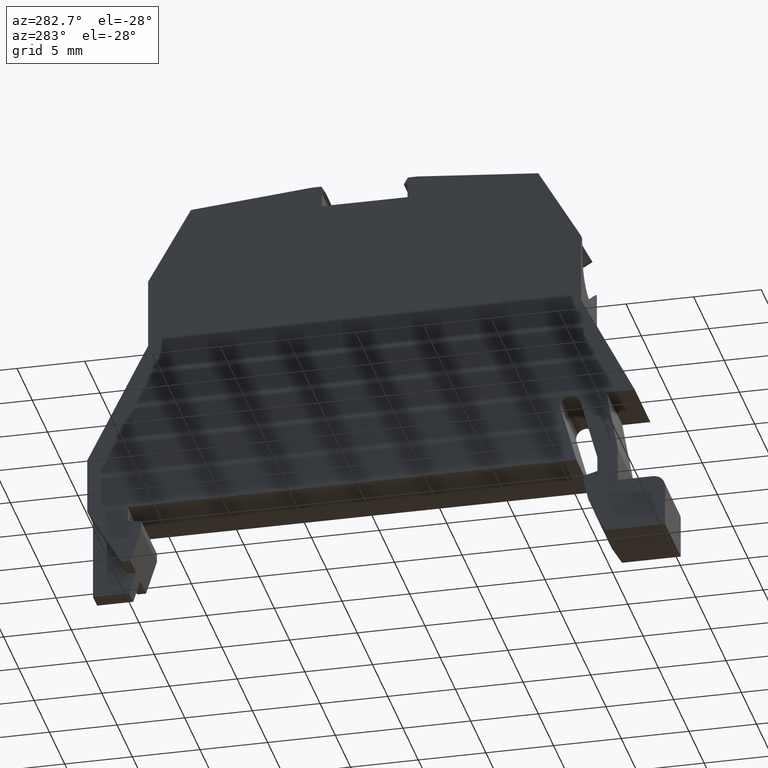
[diagram: clean part render]
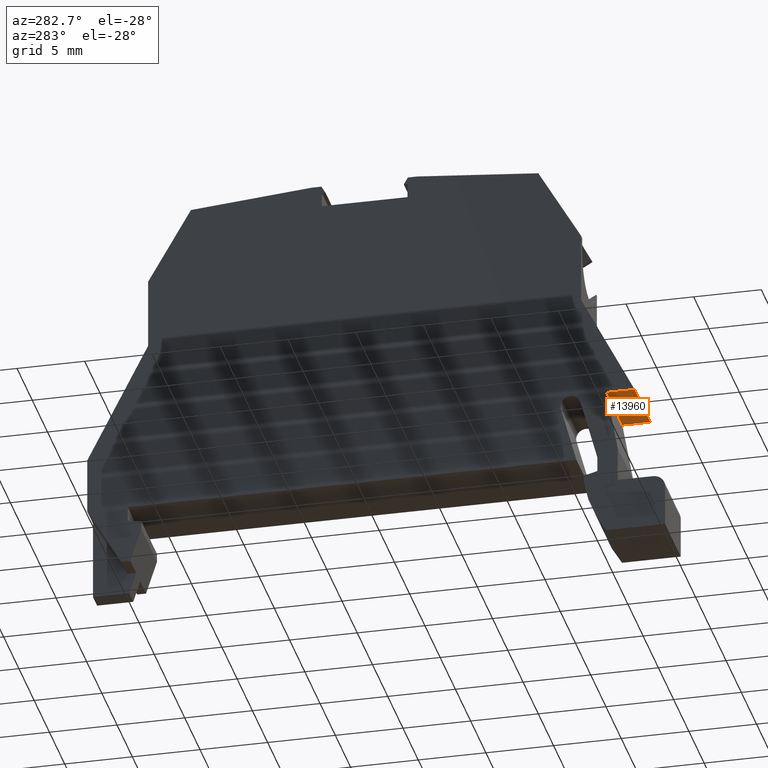
[diagram: same view with one face highlighted and labeled with its STEP entity id]
A machine part, auxiliary view. The second image highlights one B-rep face of the part: STEP entity #13960.
In plain terms, the highlighted planar face has unit normal (-0, -0, 1).
Its self-contained STEP definition (entity closure, byte-faithful):
#660=CARTESIAN_POINT('',(81.2869033162164,139.125126708464,
9.22500000000426));
#670=VERTEX_POINT('',#660);
#840=CARTESIAN_POINT('',(81.2869033162138,139.125126708464,
14.3750000000047));
#850=VERTEX_POINT('',#840);
#880=CARTESIAN_POINT('',(81.2869033162187,139.125126708464,
4.37500000000465));
#890=DIRECTION('',(4.93579527483088E-13,-1.70294172228178E-15,-1.));
#900=VECTOR('',#890,1.);
#910=LINE('',#880,#900);
#920=EDGE_CURVE('',#850,#670,#910,.T.);
#1640=CARTESIAN_POINT('',(81.2869033162158,141.196541457125,
9.22500000000424));
#1650=DIRECTION('',(2.54685161849011E-13,-1.,9.71445146589593E-15));
#1660=VECTOR('',#1650,1.);
#1670=LINE('',#1640,#1660);
#1680=CARTESIAN_POINT('',(81.2869033162158,141.196541457125,
9.22500000000424));
#1690=VERTEX_POINT('',#1680);
#1700=EDGE_CURVE('',#1690,#670,#1670,.T.);
#10800=CARTESIAN_POINT('',(81.2869033162523,-12.1795821260373,
14.3750000000061));
#10810=DIRECTION('',(2.5462965069778E-13,-1.,9.71445146589583E-15));
#10820=VECTOR('',#10810,1.);
#10830=LINE('',#10800,#10820);
#10840=CARTESIAN_POINT('',(81.2869033162133,141.196541457125,
14.3750000000046));
#10850=VERTEX_POINT('',#10840);
#10860=EDGE_CURVE('',#10850,#850,#10830,.T.);
#13800=CARTESIAN_POINT('',(81.2869033162164,139.125126708464,
9.22500000000426));
#13810=DIRECTION('',(-1.,-2.54685161849016E-13,-4.93579527483088E-13));
#13820=DIRECTION('',(2.54685161849011E-13,-1.,9.71445146589593E-15));
#13830=AXIS2_PLACEMENT_3D('',#13800,#13810,#13820);
#13840=PLANE('',#13830);
#13850=ORIENTED_EDGE('',*,*,#1700,.F.);
#13860=ORIENTED_EDGE('',*,*,#920,.T.);
#13870=ORIENTED_EDGE('',*,*,#10860,.T.);
#13880=CARTESIAN_POINT('',(81.2869033162182,141.196541457125,
4.47500000000463));
#13890=DIRECTION('',(-4.9357952748309E-13,9.71445146577014E-15,1.));
#13900=VECTOR('',#13890,1.);
#13910=LINE('',#13880,#13900);
#13920=EDGE_CURVE('',#1690,#10850,#13910,.T.);
#13930=ORIENTED_EDGE('',*,*,#13920,.T.);
#13940=EDGE_LOOP('',(#13930,#13870,#13860,#13850));
#13950=FACE_OUTER_BOUND('',#13940,.T.);
#13960=ADVANCED_FACE('',(#13950),#13840,.F.);